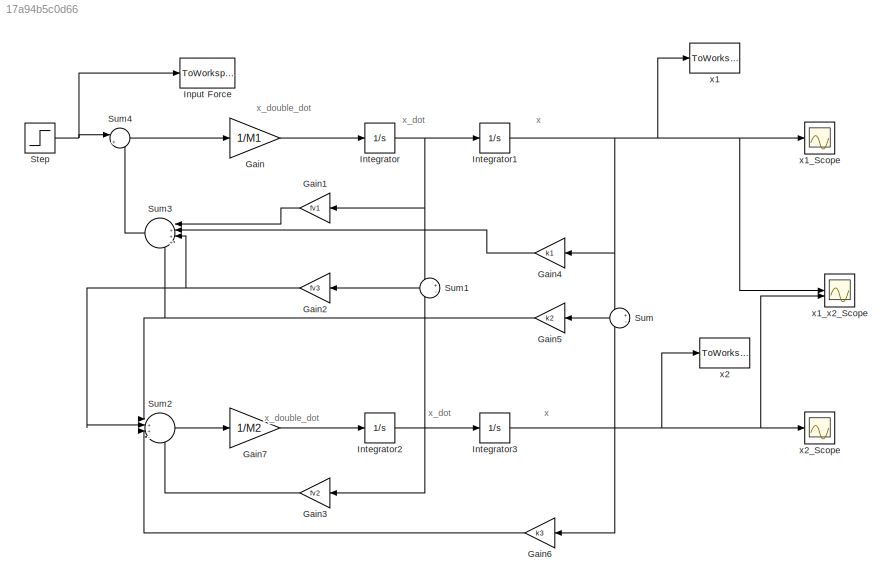
MODEL slx_17a94b5c0d66
KIND model
CONFIG AbsTol = auto
CONFIG EnableMultiTasking = off
CONFIG FixedStep = auto
CONFIG MaxStep = auto
CONFIG MinStep = auto
CONFIG RelTol = 1e-3
CONFIG SampleTimeConstraint = Unconstrained
CONFIG SolverName = VariableStepAuto
CONFIG StartTime = 0.0
CONFIG StopTime = Sim_Time1
BLOCK [Gain] Gain
  Gain = 1/M1
BLOCK [Gain] Gain1
  Gain = fv1
BLOCK [Gain] Gain2
  Gain = fv3
BLOCK [Gain] Gain3
  Gain = fv2
BLOCK [Gain] Gain4
  Gain = k1
BLOCK [Gain] Gain5
  Gain = k2
BLOCK [Gain] Gain6
  Gain = k3
BLOCK [Gain] Gain7
  Gain = 1/M2
BLOCK [ToWorkspace] Input Force
  FixptAsFi = on
  MaxDataPoints = inf
  SampleTime = -1
  SaveFormat = Timeseries
  VariableName = F1
BLOCK [Integrator] Integrator
BLOCK [Integrator] Integrator1
BLOCK [Integrator] Integrator2
BLOCK [Integrator] Integrator3
BLOCK [Step] Step
  After = F1
  SampleTime = 0
BLOCK [Sum] Sum
  Inputs = +-
BLOCK [Sum] Sum1
  Inputs = +-
BLOCK [Sum] Sum2
  Inputs = |++--
BLOCK [Sum] Sum3
  Inputs = |++++
BLOCK [Sum] Sum4
  Inputs = |+-
BLOCK [ToWorkspace] x1
  FixptAsFi = on
  MaxDataPoints = inf
  SampleTime = -1
  SaveFormat = Timeseries
  VariableName = x1
BLOCK [Scope] x1_Scope
  Floating = off
  NumInputPorts = 1
  ScopeSpecificationString = Simulink.scopes.TimeScopeBlockCfg('CurrentConfiguration', extmgr.ConfigurationSet(extmgr.Configuration('Core','General UI',true),extmgr.Configuration('Core','Source UI',true),extmgr.Configuration('Sources','WiredSimulink',true),extmgr.Configuration('Visuals','Time Domain',true,'SerializedDisplays',{struct('MinYLimReal','-0.0874','MaxYLimReal','0.7866','YLabelReal','','MinYLimMag','0.00000','MaxYLi...<+1468ch>
BLOCK [Scope] x1_x2_Scope
  Floating = off
  NumInputPorts = 2
  ScopeSpecificationString = Simulink.scopes.TimeScopeBlockCfg('CurrentConfiguration', extmgr.ConfigurationSet(extmgr.Configuration('Core','General UI',true),extmgr.Configuration('Core','Source UI',true),extmgr.Configuration('Sources','WiredSimulink',true,'DataLoggingVariableName','ScopeData2'),extmgr.Configuration('Visuals','Time Domain',true,'SerializedDisplays',{struct('MinYLimReal','-0.0874','MaxYLimReal','0.7866','YLabel...<+1522ch>
BLOCK [ToWorkspace] x2
  FixptAsFi = on
  MaxDataPoints = inf
  SampleTime = -1
  SaveFormat = Timeseries
  VariableName = x2
BLOCK [Scope] x2_Scope
  Floating = off
  NumInputPorts = 1
  ScopeSpecificationString = Simulink.scopes.TimeScopeBlockCfg('CurrentConfiguration', extmgr.ConfigurationSet(extmgr.Configuration('Core','General UI',true),extmgr.Configuration('Core','Source UI',true),extmgr.Configuration('Sources','WiredSimulink',true,'DataLoggingVariableName','ScopeData1'),extmgr.Configuration('Visuals','Time Domain',true,'SerializedDisplays',{struct('MinYLimReal','-0.0481','MaxYLimReal','0.43288','YLabe...<+1511ch>
ANNOTATION (root): x
ANNOTATION (root): x_dot
ANNOTATION (root): x_double_dot
LINE Gain1:1 -> Sum3:1
NET Gain2:1 -> Sum2:2, Sum3:3
LINE Gain3:1 -> Sum2:4
LINE Gain4:1 -> Sum3:2
NET Gain5:1 -> Sum2:1, Sum3:4
LINE Gain6:1 -> Sum2:3
LINE Gain7:1 -> Integrator2:1
LINE Gain:1 -> Integrator:1
NET Integrator1:1 -> Gain4:1, Sum:1, x1:1, x1_Scope:1, x1_x2_Scope:1
NET Integrator2:1 -> Gain3:1, Integrator3:1, Sum1:2
NET Integrator3:1 -> Gain6:1, Sum:2, x1_x2_Scope:2, x2:1, x2_Scope:1
NET Integrator:1 -> Gain1:1, Integrator1:1, Sum1:1
NET Step:1 -> Input Force:1, Sum4:1
LINE Sum1:1 -> Gain2:1
LINE Sum2:1 -> Gain7:1
LINE Sum3:1 -> Sum4:2
LINE Sum4:1 -> Gain:1
LINE Sum:1 -> Gain5:1
note: NET lines group one-source signal fan-out (src -> all destinations, sorted); 1:1 wires keep LINE
